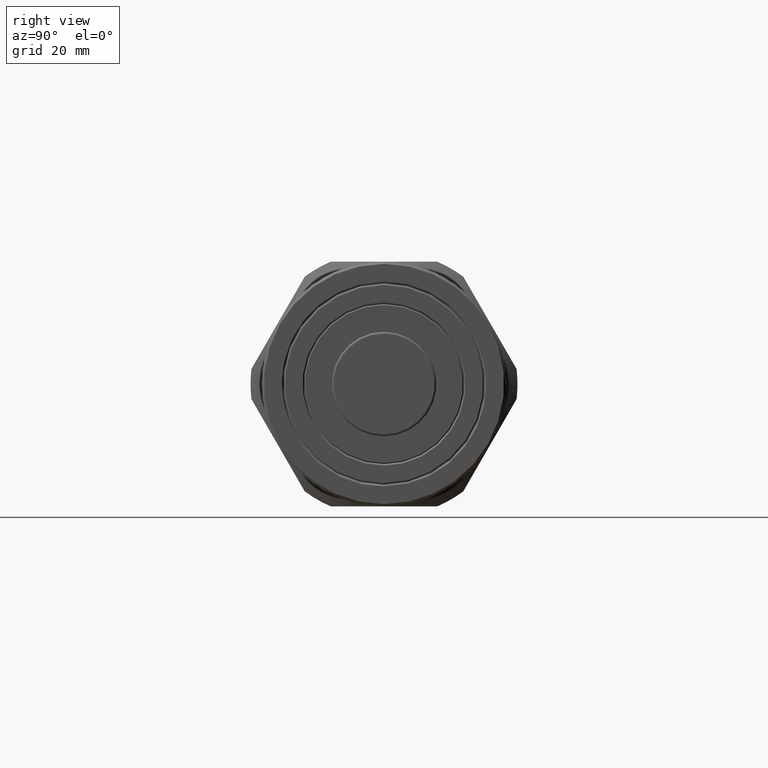
[diagram: clean part render]
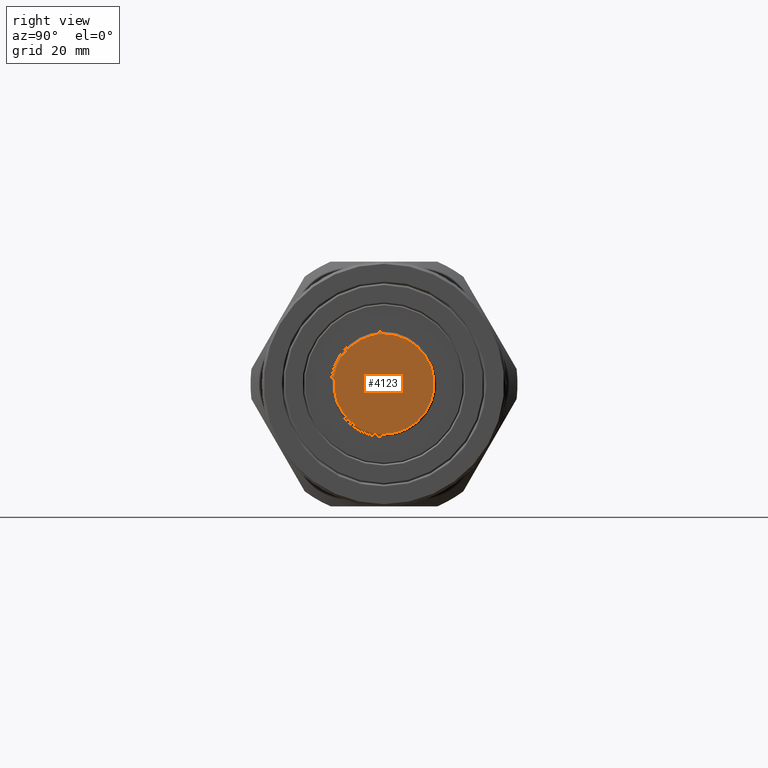
[diagram: same view with one face highlighted and labeled with its STEP entity id]
A machine part, right view. The second image highlights one B-rep face of the part: STEP entity #4123.
In plain terms, the highlighted planar face has unit normal (1, 0, 0).
Its self-contained STEP definition (entity closure, byte-faithful):
#228 = EDGE_LOOP ( 'NONE', ( #7485, #7524 ) ) ;
#941 = EDGE_CURVE ( 'NONE', #4343, #4365, #5998, .T. ) ;
#1943 = DIRECTION ( 'NONE',  ( 0.0000000000000000000, 3.276187914708076000E-016, -1.000000000000000000 ) ) ;
#2104 = DIRECTION ( 'NONE',  ( 1.000000000000000000, 4.701655571041549400E-017, 1.086267273663610000E-016 ) ) ;
#2160 = PLANE ( 'NONE',  #6503 ) ;
#2162 = DIRECTION ( 'NONE',  ( 5.807038077456879700E-017, 3.276187914708075500E-016, -1.000000000000000000 ) ) ;
#2182 = CARTESIAN_POINT ( 'NONE',  ( 72.20000000000000300, -11.75000000000000000, -2.891282663547385100E-015 ) ) ;
#2187 = DIRECTION ( 'NONE',  ( 1.000000000000000000, 4.701655571041551200E-017, 5.807038077456881000E-017 ) ) ;
#2205 = CARTESIAN_POINT ( 'NONE',  ( 72.20000000000000300, -3.237534802470244900E-015, -6.458084847716010200E-016 ) ) ;
#3158 = CARTESIAN_POINT ( 'NONE',  ( 72.20000000000000300, -5.608561224292681600E-015, 11.25000000000000000 ) ) ;
#3609 = CARTESIAN_POINT ( 'NONE',  ( 72.20000000000000300, -3.237534802470244900E-015, -6.458084847716010200E-016 ) ) ;
#3610 = DIRECTION ( 'NONE',  ( 1.000000000000000000, 4.701655571041549400E-017, 1.086267273663610000E-016 ) ) ;
#3611 = DIRECTION ( 'NONE',  ( 0.0000000000000000000, 3.276187914708076000E-016, -1.000000000000000000 ) ) ;
#3704 = CARTESIAN_POINT ( 'NONE',  ( 72.20000000000000300, 4.481766015763401600E-016, -11.25000000000000000 ) ) ;
#4123 = ADVANCED_FACE ( 'NONE', ( #5545 ), #2160, .T. ) ;
#4343 = VERTEX_POINT ( 'NONE', #3158 ) ;
#4365 = VERTEX_POINT ( 'NONE', #3704 ) ;
#5545 = FACE_OUTER_BOUND ( 'NONE', #228, .T. ) ;
#5893 = CIRCLE ( 'NONE', #6434, 11.25000000000000000 ) ;
#5998 = CIRCLE ( 'NONE', #6704, 11.25000000000000000 ) ;
#6434 = AXIS2_PLACEMENT_3D ( 'NONE', #3609, #3610, #3611 ) ;
#6503 = AXIS2_PLACEMENT_3D ( 'NONE', #2182, #2187, #2162 ) ;
#6704 = AXIS2_PLACEMENT_3D ( 'NONE', #2205, #2104, #1943 ) ;
#6900 = EDGE_CURVE ( 'NONE', #4365, #4343, #5893, .T. ) ;
#7485 = ORIENTED_EDGE ( 'NONE', *, *, #6900, .T. ) ;
#7524 = ORIENTED_EDGE ( 'NONE', *, *, #941, .T. ) ;